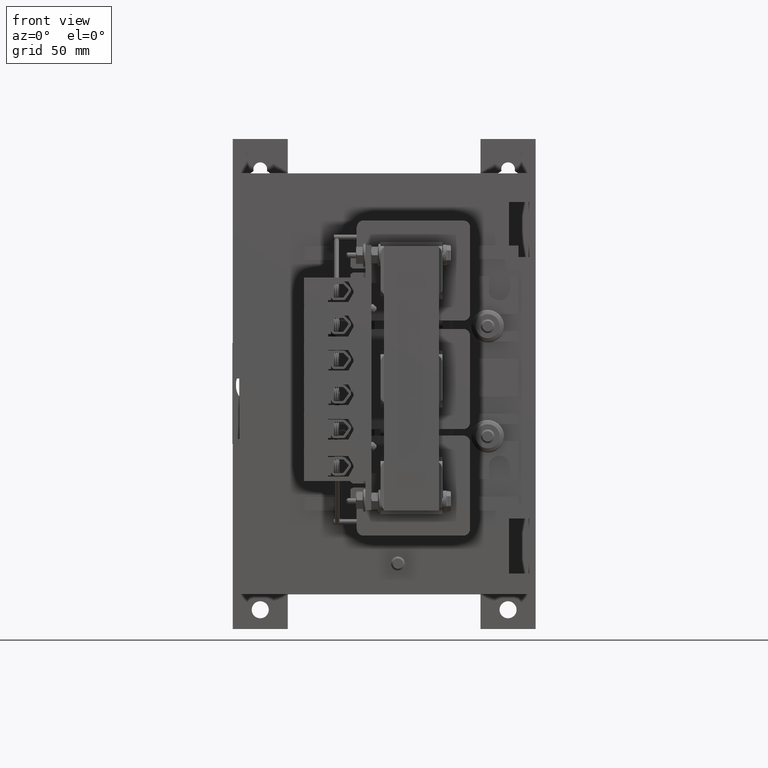
[diagram: clean part render]
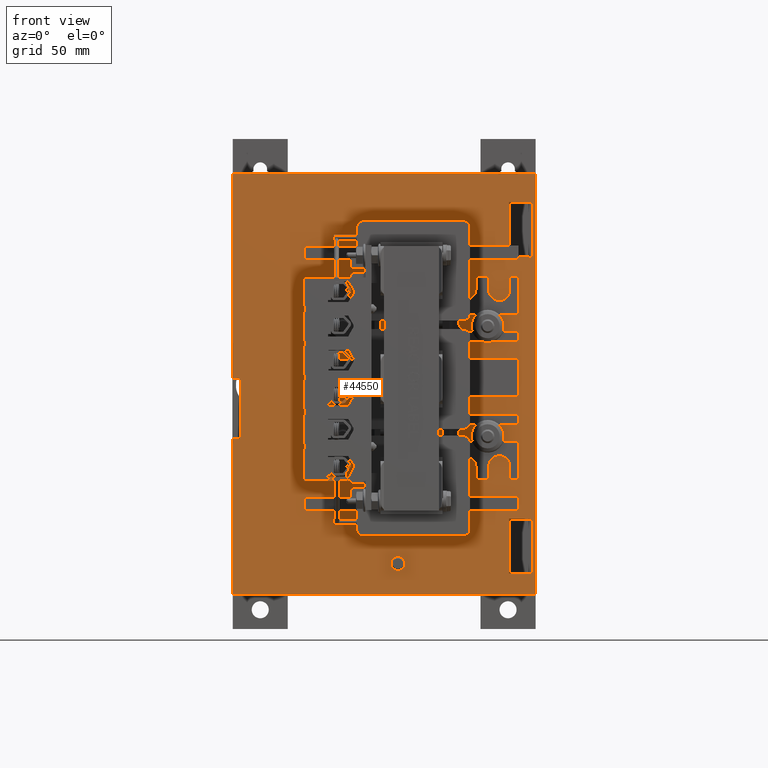
[diagram: same view with one face highlighted and labeled with its STEP entity id]
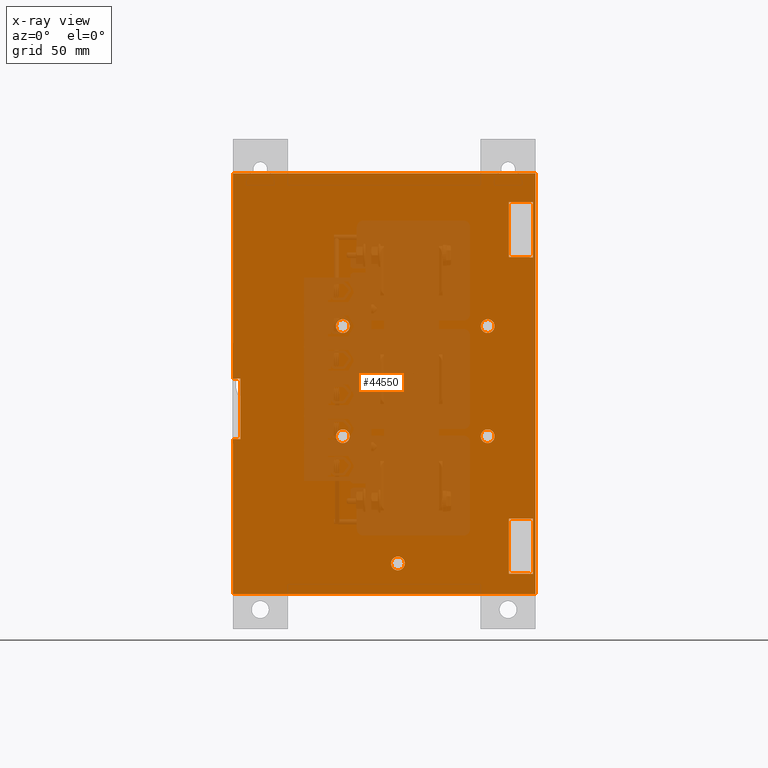
[diagram: x-ray of the same camera — body ghosted, the highlighted face saturated]
A machine part, front view. The second image highlights one B-rep face of the part: STEP entity #44550.
The next image is the same camera in x-ray: the body ghosted, the highlighted face saturated — about 37% of this face is hidden behind the body in this view.
In plain terms, the highlighted planar face has unit normal (0, -1, 0).
Its self-contained STEP definition (entity closure, byte-faithful):
#1193=FACE_BOUND('',#6886,.T.);
#1194=FACE_BOUND('',#6887,.T.);
#1195=FACE_BOUND('',#6888,.T.);
#1196=FACE_BOUND('',#6889,.T.);
#1197=FACE_BOUND('',#6890,.T.);
#1198=FACE_BOUND('',#6891,.T.);
#1199=FACE_BOUND('',#6892,.T.);
#1603=PLANE('',#47821);
#4362=FACE_OUTER_BOUND('',#6885,.T.);
#6885=EDGE_LOOP('',(#31988,#31989,#31990,#31991,#31992,#31993,#31994,#31995));
#6886=EDGE_LOOP('',(#31996));
#6887=EDGE_LOOP('',(#31997));
#6888=EDGE_LOOP('',(#31998));
#6889=EDGE_LOOP('',(#31999));
#6890=EDGE_LOOP('',(#32000));
#6891=EDGE_LOOP('',(#32001,#32002,#32003,#32004,#32005,#32006,#32007));
#6892=EDGE_LOOP('',(#32008,#32009,#32010,#32011,#32012,#32013,#32014));
#9558=LINE('',#63766,#14293);
#9567=LINE('',#63783,#14302);
#9571=LINE('',#63790,#14306);
#9572=LINE('',#63793,#14307);
#9580=LINE('',#63808,#14315);
#9624=LINE('',#63962,#14359);
#9631=LINE('',#63977,#14366);
#9633=LINE('',#63982,#14368);
#9636=LINE('',#63986,#14371);
#9649=LINE('',#64032,#14384);
#9655=LINE('',#64046,#14390);
#9659=LINE('',#64053,#14394);
#9661=LINE('',#64056,#14396);
#9666=LINE('',#64070,#14401);
#9669=LINE('',#64076,#14404);
#9671=LINE('',#64079,#14406);
#9674=LINE('',#64088,#14409);
#9677=LINE('',#64092,#14412);
#9679=LINE('',#64095,#14414);
#9706=LINE('',#64183,#14441);
#9714=LINE('',#64199,#14449);
#9724=LINE('',#64214,#14459);
#14293=VECTOR('',#51452,0.393700787401575);
#14302=VECTOR('',#51465,0.393700787401575);
#14306=VECTOR('',#51471,0.393700787401575);
#14307=VECTOR('',#51474,0.393700787401575);
#14315=VECTOR('',#51482,0.393700787401575);
#14359=VECTOR('',#51594,0.393700787401575);
#14366=VECTOR('',#51605,0.393700787401575);
#14368=VECTOR('',#51609,0.393700787401575);
#14371=VECTOR('',#51614,0.393700787401575);
#14384=VECTOR('',#51649,0.393700787401575);
#14390=VECTOR('',#51659,0.393700787401575);
#14394=VECTOR('',#51665,0.393700787401575);
#14396=VECTOR('',#51669,0.393700787401575);
#14401=VECTOR('',#51684,0.393700787401575);
#14404=VECTOR('',#51689,0.393700787401575);
#14406=VECTOR('',#51693,0.393700787401575);
#14409=VECTOR('',#51700,0.393700787401575);
#14412=VECTOR('',#51705,0.393700787401575);
#14414=VECTOR('',#51709,0.393700787401575);
#14441=VECTOR('',#51812,0.393700787401575);
#14449=VECTOR('',#51826,0.393700787401575);
#14459=VECTOR('',#51842,0.393700787401575);
#19017=CIRCLE('',#47576,0.125);
#19020=CIRCLE('',#47582,0.125);
#19023=CIRCLE('',#47588,0.125);
#19026=CIRCLE('',#47594,0.125);
#19029=CIRCLE('',#47600,0.125);
#20352=VERTEX_POINT('',#63705);
#20355=VERTEX_POINT('',#63716);
#20358=VERTEX_POINT('',#63727);
#20361=VERTEX_POINT('',#63738);
#20364=VERTEX_POINT('',#63749);
#20369=VERTEX_POINT('',#63763);
#20370=VERTEX_POINT('',#63765);
#20376=VERTEX_POINT('',#63781);
#20378=VERTEX_POINT('',#63788);
#20379=VERTEX_POINT('',#63792);
#20386=VERTEX_POINT('',#63806);
#20461=VERTEX_POINT('',#63959);
#20462=VERTEX_POINT('',#63961);
#20465=VERTEX_POINT('',#63967);
#20468=VERTEX_POINT('',#63975);
#20470=VERTEX_POINT('',#63981);
#20491=VERTEX_POINT('',#64029);
#20492=VERTEX_POINT('',#64031);
#20495=VERTEX_POINT('',#64037);
#20498=VERTEX_POINT('',#64045);
#20500=VERTEX_POINT('',#64051);
#20504=VERTEX_POINT('',#64068);
#20506=VERTEX_POINT('',#64074);
#20509=VERTEX_POINT('',#64085);
#20510=VERTEX_POINT('',#64087);
#20533=VERTEX_POINT('',#64181);
#20538=VERTEX_POINT('',#64198);
#24682=EDGE_CURVE('',#20352,#20352,#19017,.T.);
#24687=EDGE_CURVE('',#20355,#20355,#19020,.T.);
#24692=EDGE_CURVE('',#20358,#20358,#19023,.T.);
#24697=EDGE_CURVE('',#20361,#20361,#19026,.T.);
#24702=EDGE_CURVE('',#20364,#20364,#19029,.T.);
#24708=EDGE_CURVE('',#20370,#20369,#9558,.T.);
#24717=EDGE_CURVE('',#20369,#20376,#9567,.T.);
#24721=EDGE_CURVE('',#20376,#20378,#9571,.T.);
#24722=EDGE_CURVE('',#20370,#20379,#9572,.T.);
#24730=EDGE_CURVE('',#20386,#20378,#9580,.T.);
#24806=EDGE_CURVE('',#20462,#20461,#9624,.T.);
#24814=EDGE_CURVE('',#20461,#20468,#9631,.T.);
#24816=EDGE_CURVE('',#20470,#20465,#9633,.T.);
#24819=EDGE_CURVE('',#20468,#20470,#9636,.T.);
#24840=EDGE_CURVE('',#20492,#20491,#9649,.T.);
#24847=EDGE_CURVE('',#20498,#20495,#9655,.T.);
#24851=EDGE_CURVE('',#20491,#20500,#9659,.T.);
#24853=EDGE_CURVE('',#20500,#20498,#9661,.T.);
#24860=EDGE_CURVE('',#20495,#20504,#9666,.T.);
#24863=EDGE_CURVE('',#20504,#20506,#9669,.T.);
#24865=EDGE_CURVE('',#20506,#20492,#9671,.T.);
#24868=EDGE_CURVE('',#20510,#20509,#9674,.T.);
#24871=EDGE_CURVE('',#20509,#20462,#9677,.T.);
#24873=EDGE_CURVE('',#20465,#20510,#9679,.T.);
#24916=EDGE_CURVE('',#20386,#20533,#9706,.T.);
#24924=EDGE_CURVE('',#20538,#20379,#9714,.T.);
#24934=EDGE_CURVE('',#20533,#20538,#9724,.T.);
#31988=ORIENTED_EDGE('',*,*,#24721,.T.);
#31989=ORIENTED_EDGE('',*,*,#24730,.F.);
#31990=ORIENTED_EDGE('',*,*,#24916,.T.);
#31991=ORIENTED_EDGE('',*,*,#24934,.T.);
#31992=ORIENTED_EDGE('',*,*,#24924,.T.);
#31993=ORIENTED_EDGE('',*,*,#24722,.F.);
#31994=ORIENTED_EDGE('',*,*,#24708,.T.);
#31995=ORIENTED_EDGE('',*,*,#24717,.T.);
#31996=ORIENTED_EDGE('',*,*,#24682,.T.);
#31997=ORIENTED_EDGE('',*,*,#24697,.T.);
#31998=ORIENTED_EDGE('',*,*,#24687,.T.);
#31999=ORIENTED_EDGE('',*,*,#24702,.T.);
#32000=ORIENTED_EDGE('',*,*,#24692,.T.);
#32001=ORIENTED_EDGE('',*,*,#24816,.T.);
#32002=ORIENTED_EDGE('',*,*,#24873,.T.);
#32003=ORIENTED_EDGE('',*,*,#24868,.T.);
#32004=ORIENTED_EDGE('',*,*,#24871,.T.);
#32005=ORIENTED_EDGE('',*,*,#24806,.T.);
#32006=ORIENTED_EDGE('',*,*,#24814,.T.);
#32007=ORIENTED_EDGE('',*,*,#24819,.T.);
#32008=ORIENTED_EDGE('',*,*,#24847,.T.);
#32009=ORIENTED_EDGE('',*,*,#24860,.T.);
#32010=ORIENTED_EDGE('',*,*,#24863,.T.);
#32011=ORIENTED_EDGE('',*,*,#24865,.T.);
#32012=ORIENTED_EDGE('',*,*,#24840,.T.);
#32013=ORIENTED_EDGE('',*,*,#24851,.T.);
#32014=ORIENTED_EDGE('',*,*,#24853,.T.);
#44550=ADVANCED_FACE('',(#4362,#1193,#1194,#1195,#1196,#1197,#1198,#1199),
#1603,.T.);
#47576=AXIS2_PLACEMENT_3D('',#63707,#51381,#51382);
#47582=AXIS2_PLACEMENT_3D('',#63718,#51395,#51396);
#47588=AXIS2_PLACEMENT_3D('',#63729,#51409,#51410);
#47594=AXIS2_PLACEMENT_3D('',#63740,#51423,#51424);
#47600=AXIS2_PLACEMENT_3D('',#63751,#51437,#51438);
#47821=AXIS2_PLACEMENT_3D('',#64487,#52152,#52153);
#51381=DIRECTION('center_axis',(-2.54310213228382E-16,1.,0.));
#51382=DIRECTION('ref_axis',(-1.,0.,0.));
#51395=DIRECTION('center_axis',(-2.54310213228382E-16,1.,0.));
#51396=DIRECTION('ref_axis',(-1.,-3.49676543189026E-16,0.));
#51409=DIRECTION('center_axis',(-2.54310213228382E-16,1.,0.));
#51410=DIRECTION('ref_axis',(-1.,0.,0.));
#51423=DIRECTION('center_axis',(-2.54310213228382E-16,1.,0.));
#51424=DIRECTION('ref_axis',(-1.,0.,0.));
#51437=DIRECTION('center_axis',(-2.54310213228382E-16,1.,0.));
#51438=DIRECTION('ref_axis',(-1.,-3.49676543189026E-16,0.));
#51452=DIRECTION('',(1.,2.54310213228382E-16,0.));
#51465=DIRECTION('',(0.,0.,-1.));
#51471=DIRECTION('',(-1.,-2.54310213228382E-16,0.));
#51474=DIRECTION('',(0.,0.,1.));
#51482=DIRECTION('',(0.,0.,1.));
#51594=DIRECTION('',(-3.27821759239712E-16,-8.33684214931545E-32,1.));
#51605=DIRECTION('',(-1.,-2.54310213228382E-16,0.));
#51609=DIRECTION('',(1.,2.54310213228382E-16,0.));
#51614=DIRECTION('',(-3.51433711747765E-16,-8.9373182170216E-32,1.));
#51649=DIRECTION('',(-3.27821759239712E-16,-8.33684214931545E-32,1.));
#51659=DIRECTION('',(1.,2.54310213228382E-16,0.));
#51665=DIRECTION('',(-1.,-2.54310213228382E-16,-2.33117695459351E-16));
#51669=DIRECTION('',(-2.63575283810824E-16,-6.70298866276619E-32,1.));
#51684=DIRECTION('',(1.,2.54310213228382E-16,0.));
#51689=DIRECTION('',(2.29475231467798E-16,5.83578950452081E-32,-1.));
#51693=DIRECTION('',(-1.,-2.54310213228382E-16,0.));
#51700=DIRECTION('',(4.26168287011625E-16,1.08378947941101E-31,-1.));
#51705=DIRECTION('',(-1.,-2.54310213228382E-16,0.));
#51709=DIRECTION('',(1.,2.54310213228382E-16,0.));
#51812=DIRECTION('',(1.,2.54310213228382E-16,1.27155106614191E-16));
#51826=DIRECTION('',(-1.,-2.54310213228382E-16,0.));
#51842=DIRECTION('',(0.,0.,1.));
#52152=DIRECTION('center_axis',(2.54310213228382E-16,-1.,0.));
#52153=DIRECTION('ref_axis',(0.,0.,-1.));
#63705=CARTESIAN_POINT('',(2.12748862693764,-2.24957193610773,1.19));
#63707=CARTESIAN_POINT('Origin',(2.00248862693764,-2.24957193610773,1.19));
#63716=CARTESIAN_POINT('',(1.12748862693764,-2.24957193610773,3.5));
#63718=CARTESIAN_POINT('Origin',(1.00248862693764,-2.24957193610773,3.5));
#63727=CARTESIAN_POINT('',(3.75748862693764,-2.24957193610773,3.5));
#63729=CARTESIAN_POINT('Origin',(3.63248862693764,-2.24957193610773,3.5));
#63738=CARTESIAN_POINT('',(3.75748862693764,-2.24957193610773,5.5));
#63740=CARTESIAN_POINT('Origin',(3.63248862693764,-2.24957193610773,5.5));
#63749=CARTESIAN_POINT('',(1.12748862693764,-2.24957193610773,5.5));
#63751=CARTESIAN_POINT('Origin',(1.00248862693764,-2.24957193610773,5.5));
#63763=CARTESIAN_POINT('',(-0.858511373062356,-2.24957193610773,4.55));
#63765=CARTESIAN_POINT('',(-0.997511373062356,-2.24957193610773,4.55));
#63766=CARTESIAN_POINT('',(1.82198862693764,-2.24957193610773,4.55));
#63781=CARTESIAN_POINT('',(-0.858511373062356,-2.24957193610773,3.45));
#63783=CARTESIAN_POINT('',(-0.858511373062356,-2.24957193610773,1.725));
#63788=CARTESIAN_POINT('',(-0.997511373062357,-2.24957193610773,3.45));
#63790=CARTESIAN_POINT('',(1.75248862693764,-2.24957193610773,3.45));
#63792=CARTESIAN_POINT('',(-0.997511373062356,-2.24957193610773,8.275));
#63793=CARTESIAN_POINT('',(-0.997511373062357,-2.24957193610773,0.));
#63806=CARTESIAN_POINT('',(-0.997511373062357,-2.24957193610773,0.63));
#63808=CARTESIAN_POINT('',(-0.997511373062357,-2.24957193610773,0.));
#63959=CARTESIAN_POINT('',(4.39348862693764,-2.24957193610773,6.755));
#63961=CARTESIAN_POINT('',(4.39348862693764,-2.24957193610773,6.75));
#63962=CARTESIAN_POINT('',(4.39348862693764,-2.24957193610773,3.375));
#63967=CARTESIAN_POINT('',(4.39348862693764,-2.24957193610773,7.75));
#63975=CARTESIAN_POINT('',(4.01848862693764,-2.24957193610773,6.755));
#63977=CARTESIAN_POINT('',(4.26048862693764,-2.24957193610773,6.755));
#63981=CARTESIAN_POINT('',(4.01848862693764,-2.24957193610773,7.75));
#63982=CARTESIAN_POINT('',(4.44798862693764,-2.24957193610773,7.75));
#63986=CARTESIAN_POINT('',(4.01848862693764,-2.24957193610773,3.875));
#64029=CARTESIAN_POINT('',(4.39348862693764,-2.24957193610773,1.005));
#64031=CARTESIAN_POINT('',(4.39348862693764,-2.24957193610773,1.));
#64032=CARTESIAN_POINT('',(4.39348862693764,-2.24957193610773,0.5));
#64037=CARTESIAN_POINT('',(4.39348862693764,-2.24957193610773,2.));
#64045=CARTESIAN_POINT('',(4.01848862693764,-2.24957193610773,2.));
#64046=CARTESIAN_POINT('',(4.44798862693764,-2.24957193610773,2.));
#64051=CARTESIAN_POINT('',(4.01848862693764,-2.24957193610773,1.005));
#64053=CARTESIAN_POINT('',(4.26048862693764,-2.24957193610773,1.005));
#64056=CARTESIAN_POINT('',(4.01848862693764,-2.24957193610773,1.));
#64068=CARTESIAN_POINT('',(4.45248862693764,-2.24957193610773,2.));
#64070=CARTESIAN_POINT('',(4.44798862693764,-2.24957193610773,2.));
#64074=CARTESIAN_POINT('',(4.45248862693764,-2.24957193610773,1.));
#64076=CARTESIAN_POINT('',(4.45248862693764,-2.24957193610773,1.));
#64079=CARTESIAN_POINT('',(4.47748862693764,-2.24957193610773,1.));
#64085=CARTESIAN_POINT('',(4.45248862693764,-2.24957193610773,6.75));
#64087=CARTESIAN_POINT('',(4.45248862693764,-2.24957193610773,7.75));
#64088=CARTESIAN_POINT('',(4.45248862693764,-2.24957193610773,3.875));
#64092=CARTESIAN_POINT('',(4.47748862693764,-2.24957193610773,6.75));
#64095=CARTESIAN_POINT('',(4.44798862693764,-2.24957193610773,7.75));
#64181=CARTESIAN_POINT('',(4.50248862693764,-2.24957193610773,0.630000000000001));
#64183=CARTESIAN_POINT('',(4.50248862693764,-2.24957193610773,0.630000000000001));
#64198=CARTESIAN_POINT('',(4.50248862693764,-2.24957193610773,8.275));
#64199=CARTESIAN_POINT('',(1.75248862693764,-2.24957193610773,8.275));
#64214=CARTESIAN_POINT('',(4.50248862693764,-2.24957193610773,0.));
#64487=CARTESIAN_POINT('Origin',(4.50248862693764,-2.24957193610773,0.));